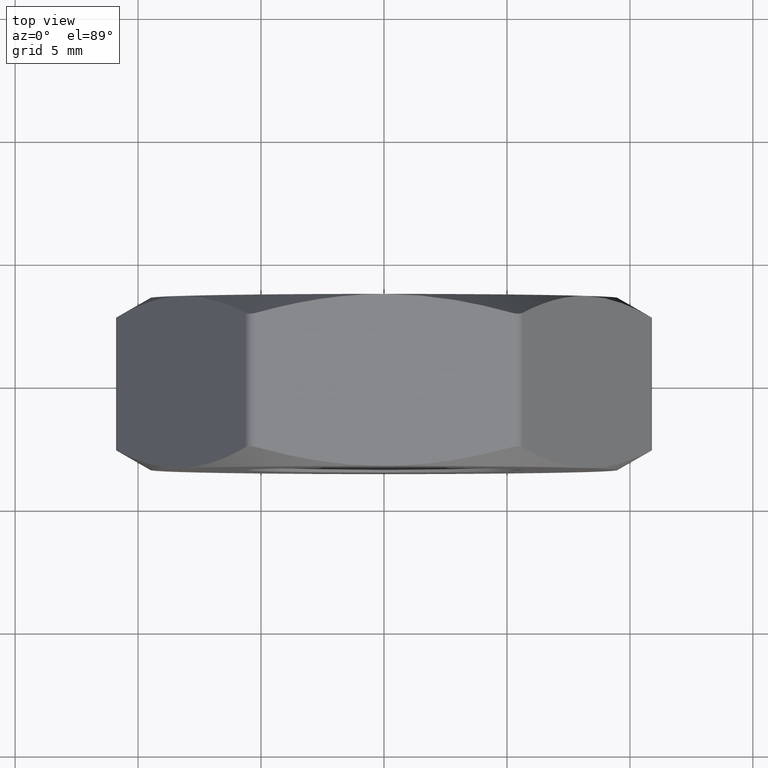
[diagram: clean part render]
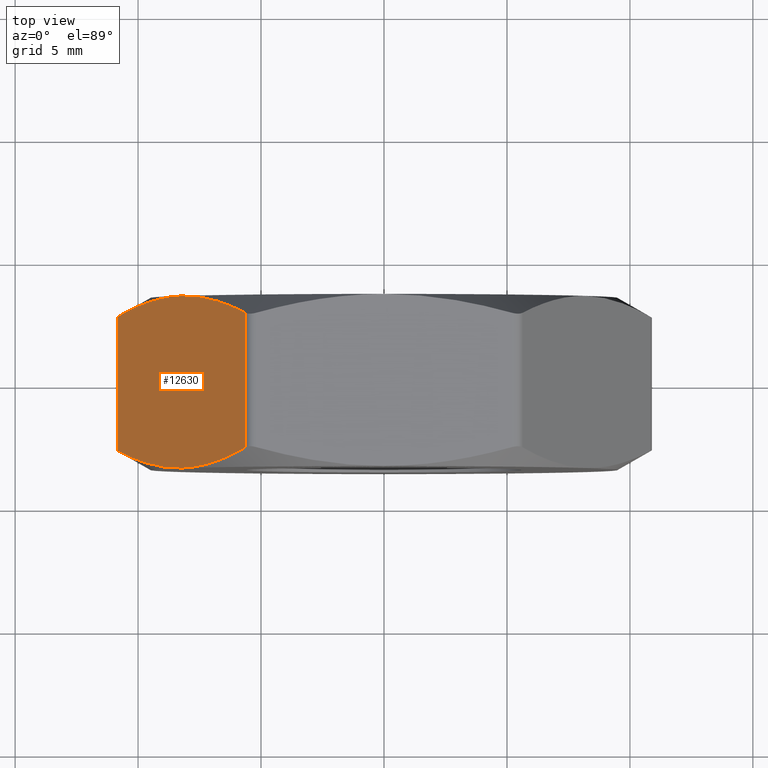
[diagram: same view with one face highlighted and labeled with its STEP entity id]
A machine part, top view. The second image highlights one B-rep face of the part: STEP entity #12630.
In plain terms, the highlighted planar face has unit normal (0.866, 0, -0.5).
Its self-contained STEP definition (entity closure, byte-faithful):
#26 = EDGE_CURVE ( 'NONE', #12835, #14193, #14772, .T. ) ;
#103 = B_SPLINE_CURVE_WITH_KNOTS ( 'NONE', 3,
 ( #3478, #4491, #12796, #5689, #8082, #12897 ),
 .UNSPECIFIED., .F., .F.,
 ( 4, 2, 4 ),
 ( 0.0002975922718325331061, 0.002923788827799094978, 0.005549985383765656741 ),
 .UNSPECIFIED. ) ;
#468 = VERTEX_POINT ( 'NONE', #3564 ) ;
#1127 = EDGE_CURVE ( 'NONE', #14193, #15026, #1921, .T. ) ;
#1360 = CARTESIAN_POINT ( 'NONE',  ( -10.82531754730548101, 2.733161112797774184, 0.2499999999999991951 ) ) ;
#1921 = B_SPLINE_CURVE_WITH_KNOTS ( 'NONE', 3,
 ( #11590, #12939, #5785, #3262, #4484, #5633 ),
 .UNSPECIFIED., .F., .F.,
 ( 4, 2, 4 ),
 ( 0.0002975922718325326182, 0.002923788827799093677, 0.005549985383765654139 ),
 .UNSPECIFIED. ) ;
#2358 = CARTESIAN_POINT ( 'NONE',  ( -8.668755713662408269, 3.482053147081709099, 3.985274665533704130 ) ) ;
#2533 = VERTEX_POINT ( 'NONE', #11505 ) ;
#2710 = CARTESIAN_POINT ( 'NONE',  ( -7.347778050468204647, -3.412405536657729055, 6.273275093849667527 ) ) ;
#2780 = EDGE_CURVE ( 'NONE', #2533, #468, #11923, .T. ) ;
#3223 = CARTESIAN_POINT ( 'NONE',  ( -10.82531754730548101, 3.500000000000000000, 0.2499999999999985290 ) ) ;
#3262 = CARTESIAN_POINT ( 'NONE',  ( -9.106430400612969933, -3.427662757294318574, 3.227199870548522309 ) ) ;
#3478 = CARTESIAN_POINT ( 'NONE',  ( -5.629165124598349834, 2.733161112797498404, 9.250000000000863309 ) ) ;
#3550 = CARTESIAN_POINT ( 'NONE',  ( -9.324286606578482406, 3.360768812073043232, 2.849861853072072293 ) ) ;
#3564 = CARTESIAN_POINT ( 'NONE',  ( -5.629165124598349834, 2.733161112797498404, 9.250000000000863309 ) ) ;
#3764 = CARTESIAN_POINT ( 'NONE',  ( -10.82531754730548101, 2.733161112797774184, 0.2499999999999991951 ) ) ;
#3929 = B_SPLINE_CURVE_WITH_KNOTS ( 'NONE', 3,
 ( #14801, #11145, #10006, #2710, #4308, #7829, #5387, #13701 ),
 .UNSPECIFIED., .F., .F.,
 ( 4, 2, 2, 4 ),
 ( 0.005549985383765654139, 0.006857997360578058955, 0.008166009337390464640, 0.01078203329101527427 ),
 .UNSPECIFIED. ) ;
#4267 = FACE_OUTER_BOUND ( 'NONE', #12554, .T. ) ;
#4308 = CARTESIAN_POINT ( 'NONE',  ( -7.130196065325849375, -3.360768812073043232, 6.650138146927925931 ) ) ;
#4484 = CARTESIAN_POINT ( 'NONE',  ( -8.669433656285479017, -3.500000000000007994, 3.984100434465927432 ) ) ;
#4491 = CARTESIAN_POINT ( 'NONE',  ( -6.054432448312228487, 2.968805358379078996, 8.513415388529582017 ) ) ;
#5008 = B_SPLINE_CURVE_WITH_KNOTS ( 'NONE', 3,
 ( #15281, #8268, #2358, #10642, #3550, #11832, #9255, #1360 ),
 .UNSPECIFIED., .F., .F.,
 ( 4, 2, 2, 4 ),
 ( 0.005549985383765656741, 0.006857997360578061558, 0.008166009337390468109, 0.01078203329101527774 ),
 .UNSPECIFIED. ) ;
#5126 = CARTESIAN_POINT ( 'NONE',  ( -10.82531754730597839, -2.733161112797498848, 0.2499999999991370236 ) ) ;
#5302 = DIRECTION ( 'NONE',  ( -0.000000000000000000, 1.000000000000000000, -0.000000000000000000 ) ) ;
#5387 = CARTESIAN_POINT ( 'NONE',  ( -6.053412761787224206, -2.968240341392042403, 8.515181537398682110 ) ) ;
#5471 = CARTESIAN_POINT ( 'NONE',  ( -10.96965511460288845, 3.500000000000000000, -1.745921706464517970E-15 ) ) ;
#5633 = CARTESIAN_POINT ( 'NONE',  ( -8.227241335952168555, -3.500000000000000000, 4.750000000000000888 ) ) ;
#5689 = CARTESIAN_POINT ( 'NONE',  ( -7.348052271291354742, 3.427662757294319462, 6.272800129451478135 ) ) ;
#5785 = CARTESIAN_POINT ( 'NONE',  ( -9.971711193546214602, -3.161682687220363608, 1.728489574374660664 ) ) ;
#6322 = CARTESIAN_POINT ( 'NONE',  ( -5.629165124598848102, 3.500000000000000000, 9.250000000000001776 ) ) ;
#6557 = AXIS2_PLACEMENT_3D ( 'NONE', #5471, #6803, #6702 ) ;
#6702 = DIRECTION ( 'NONE',  ( -0.5000000000000000000, 0.000000000000000000, -0.8660254037844385966 ) ) ;
#6803 = DIRECTION ( 'NONE',  ( 0.8660254037844387076, 0.000000000000000000, -0.5000000000000001110 ) ) ;
#7456 = EDGE_CURVE ( 'NONE', #468, #8672, #103, .T. ) ;
#7829 = CARTESIAN_POINT ( 'NONE',  ( -6.481161992788940118, -3.161040693212942010, 7.774298136405198179 ) ) ;
#7872 = DIRECTION ( 'NONE',  ( 0.000000000000000000, -1.000000000000000000, 0.000000000000000000 ) ) ;
#8082 = CARTESIAN_POINT ( 'NONE',  ( -7.785049015618850987, 3.500000000000007550, 5.515899565534070348 ) ) ;
#8268 = CARTESIAN_POINT ( 'NONE',  ( -8.447481077618251177, 3.500000000000008882, 4.368533577588495476 ) ) ;
#8287 = ORIENTED_EDGE ( 'NONE', *, *, #2780, .T. ) ;
#8672 = VERTEX_POINT ( 'NONE', #9770 ) ;
#9069 = PLANE ( 'NONE',  #6557 ) ;
#9255 = CARTESIAN_POINT ( 'NONE',  ( -10.40106991011710669, 2.968240341392043291, 0.9848184626013100074 ) ) ;
#9719 = ORIENTED_EDGE ( 'NONE', *, *, #26, .T. ) ;
#9770 = CARTESIAN_POINT ( 'NONE',  ( -8.227241335952168555, 3.500000000000000000, 4.750000000000000888 ) ) ;
#10006 = CARTESIAN_POINT ( 'NONE',  ( -7.785726958241923512, -3.482053147081709099, 5.514725334466293205 ) ) ;
#10578 = ORIENTED_EDGE ( 'NONE', *, *, #10814, .T. ) ;
#10642 = CARTESIAN_POINT ( 'NONE',  ( -9.106704621436122693, 3.412405536657729055, 3.226724906150328476 ) ) ;
#10814 = EDGE_CURVE ( 'NONE', #15026, #2533, #3929, .T. ) ;
#11145 = CARTESIAN_POINT ( 'NONE',  ( -8.007001594286082380, -3.500000000000008438, 5.131466422411502748 ) ) ;
#11175 = ORIENTED_EDGE ( 'NONE', *, *, #7456, .T. ) ;
#11384 = EDGE_CURVE ( 'NONE', #8672, #12835, #5008, .T. ) ;
#11505 = CARTESIAN_POINT ( 'NONE',  ( -5.629165124598848990, -2.733161112797774184, 9.250000000000000000 ) ) ;
#11590 = CARTESIAN_POINT ( 'NONE',  ( -10.82531754730597839, -2.733161112797498848, 0.2499999999991370236 ) ) ;
#11832 = CARTESIAN_POINT ( 'NONE',  ( -9.973320679115392551, 3.161040693212943342, 1.725701863594799379 ) ) ;
#11923 = LINE ( 'NONE', #6322, #15114 ) ;
#12021 = ORIENTED_EDGE ( 'NONE', *, *, #1127, .T. ) ;
#12554 = EDGE_LOOP ( 'NONE', ( #13902, #9719, #12021, #10578, #8287, #11175 ) ) ;
#12630 = ADVANCED_FACE ( 'NONE', ( #4267 ), #9069, .F. ) ;
#12796 = CARTESIAN_POINT ( 'NONE',  ( -6.482771478358115402, 3.161682687220364940, 7.771510425625342222 ) ) ;
#12835 = VERTEX_POINT ( 'NONE', #3764 ) ;
#12897 = CARTESIAN_POINT ( 'NONE',  ( -8.227241335952168555, 3.500000000000000000, 4.750000000000000888 ) ) ;
#12939 = CARTESIAN_POINT ( 'NONE',  ( -10.40005022359209974, -2.968805358379080328, 0.9865846114704176495 ) ) ;
#13701 = CARTESIAN_POINT ( 'NONE',  ( -5.629165124598848990, -2.733161112797774184, 9.250000000000000000 ) ) ;
#13902 = ORIENTED_EDGE ( 'NONE', *, *, #11384, .T. ) ;
#13904 = CARTESIAN_POINT ( 'NONE',  ( -8.227241335952168555, -3.500000000000000000, 4.750000000000000888 ) ) ;
#14193 = VERTEX_POINT ( 'NONE', #5126 ) ;
#14240 = VECTOR ( 'NONE', #7872, 1000.000000000000000 ) ;
#14772 = LINE ( 'NONE', #3223, #14240 ) ;
#14801 = CARTESIAN_POINT ( 'NONE',  ( -8.227241335952168555, -3.500000000000000000, 4.750000000000000888 ) ) ;
#15026 = VERTEX_POINT ( 'NONE', #13904 ) ;
#15114 = VECTOR ( 'NONE', #5302, 1000.000000000000000 ) ;
#15281 = CARTESIAN_POINT ( 'NONE',  ( -8.227241335952168555, 3.500000000000000000, 4.750000000000000888 ) ) ;